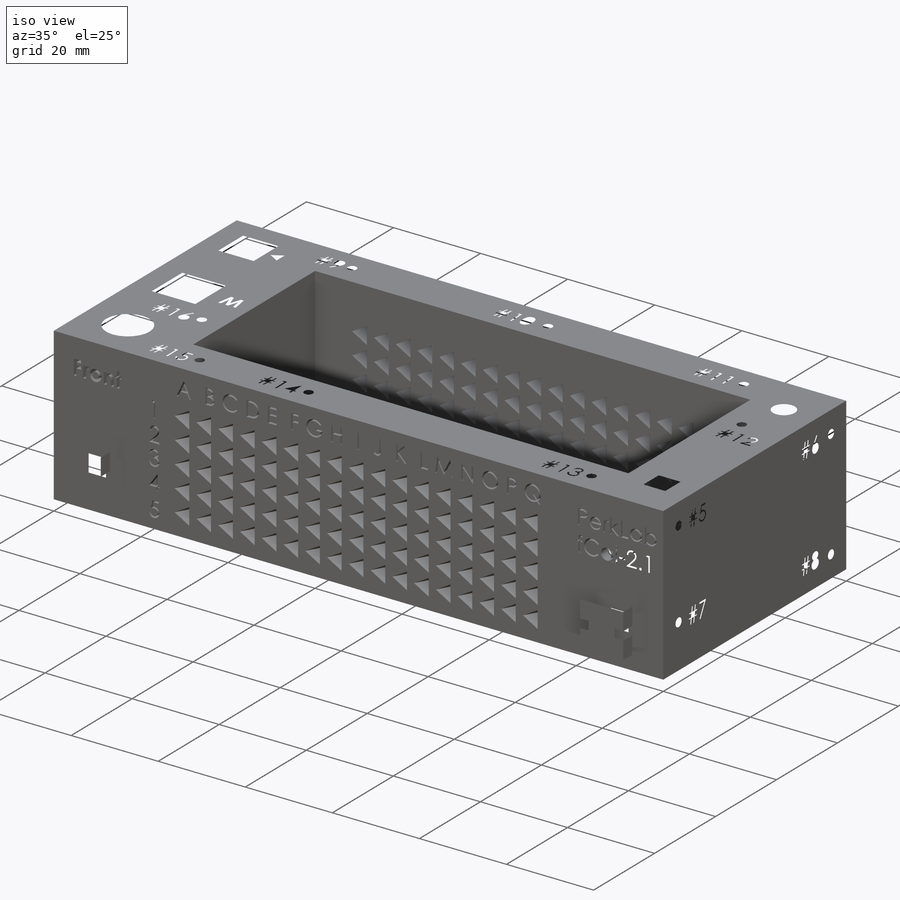
[diagram: iso view]
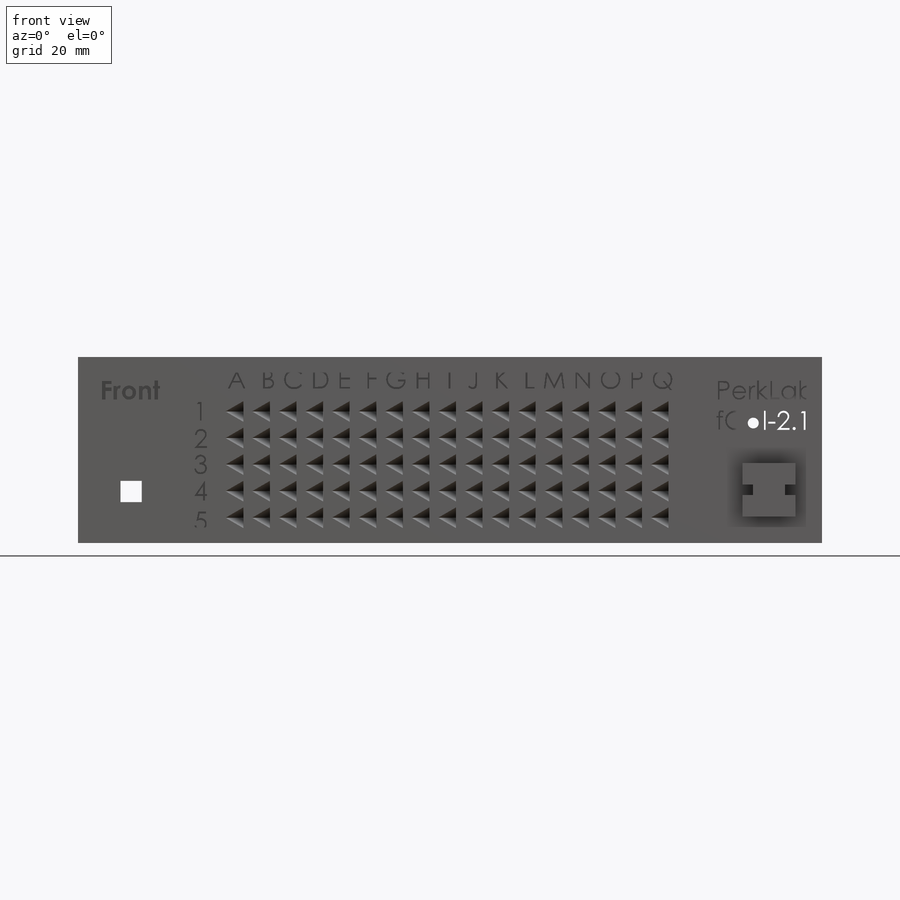
[diagram: front view]
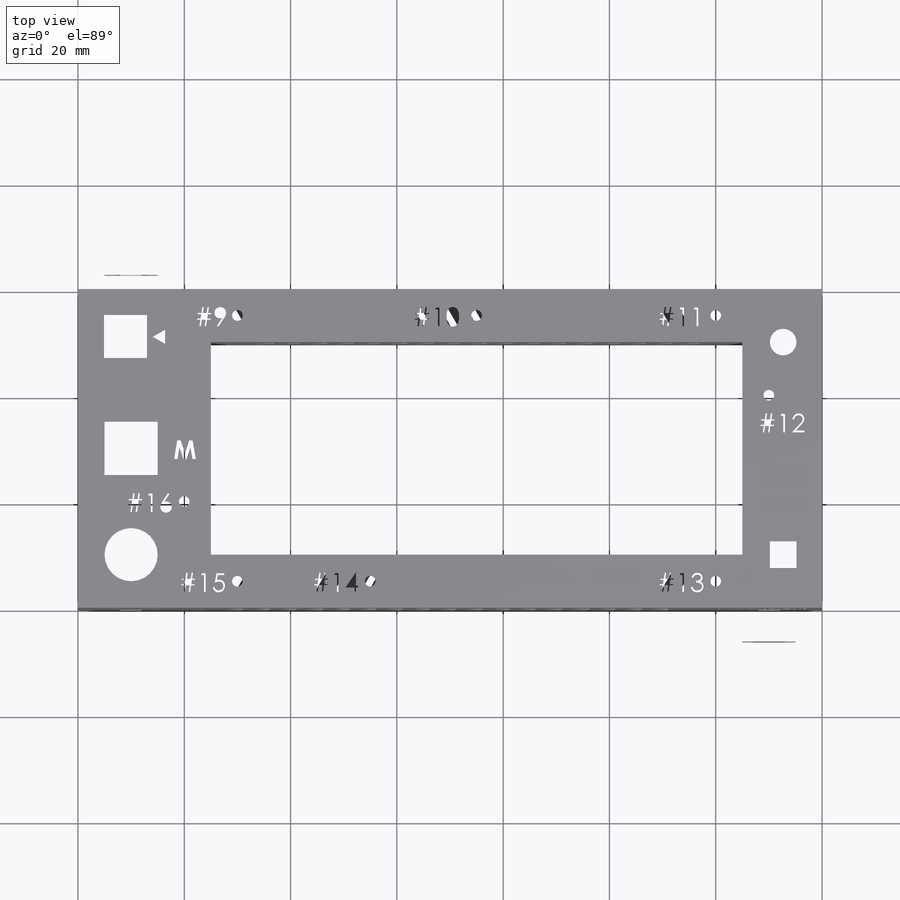
[diagram: top view]
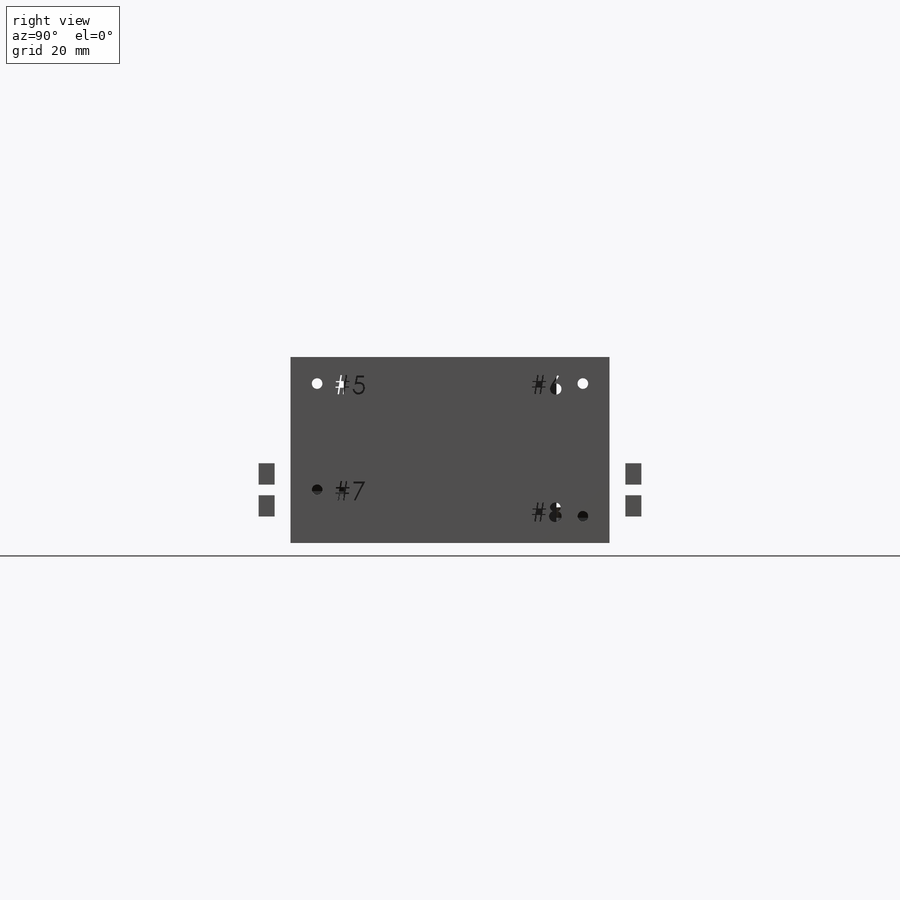
[diagram: right view]
SOLIDWORKS PART (.sldprt)
format: sldprt  version: not decoded by parser v0  size: 3,121,664 bytes
history: native  units: mm
features: sketch x23, cut_extrude x17, extrude x3, plane x3, mirror x3, material x1, pattern_linear x1 (+15 scaffold rows collapsed)
feature tree (66):
  scaffold x15  (default folders/planes/origin — collapsed)
  material  "Material <not specified>"
  sketch  "Sketch1"
  extrude  "Body"  Depth=35mm
  sketch  "Hole angle line"  dims[D1=60.0deg]
  sketch  "Sketch15"  dims[D1=~97.989943deg]
  cut_extrude  "Fiducial hole"  [1 undecoded]
  pattern_linear  "Fiducial holes front"  Count1=17 Count2=5 Spacing1=5mm Spacing2=5mm
  plane  "Center plane long"
  mirror  "Fiducial holes back"
  sketch  "Sketch2"
  cut_extrude  "Text-Front"  Depth=2mm
  sketch  "Sketch20"  dims[c1.Small sensor holder circle hole diameter=5.0mm c1.D3=~3.296039mm c1.D5=10.0mm c2.D5=10.0mm c2.D1=5.0mm c2.D2=5.0mm c2.D3=10.0mm c2.D4=10.0mm]
  cut_extrude  "Sensor holder holes"  [1 undecoded]
  sketch  "Sketch21"
  sketch  "Sketch22"  dims[D1=~2.02626mm]
  cut_extrude  "Divots Right"  Depth=2mm
  sketch  "Sketch23"  dims[D1=~1.416347mm]
  cut_extrude  "Divots Left"  Depth=2mm
  sketch  "Sketch24"
  cut_extrude  "Text Left"  Depth=2mm
  sketch  "Sketch25"
  cut_extrude  "Text Right"  Depth=2mm
  sketch  "Sketch28"
  cut_extrude  "Text Back"  Depth=2mm
  sketch  "Sketch29"  dims[c1.D1=4.0mm c1.D2=~3.993776mm c2.D2=90.0deg c3.D2=4.0mm]
  extrude  "Fiducial fixer base"  Depth=3mm
  sketch  "Sketch30"  dims[D1=10.0mm D2=10.0mm]
  extrude  "Fiducial fixer top"  Depth=3mm
  sketch  "Sketch31"
  cut_extrude  "Fiducial fixer top cut"  [1 undecoded]
  mirror  "Mirror2"
  plane  "Center plane short"
  mirror  "Mirror3"
  sketch  "Sketch33"
  cut_extrude  "Sensor holder hole"  Depth=20.1mm
  sketch  "Sketch34"  dims[D1=2.0mm]
  cut_extrude  "Sensor holder pushout hole"  [1 undecoded]
  sketch  "Sketch35"  dims[D1=3.425mm]
  cut_extrude  "Sensor holder nut hole 1"  Depth=3mm
  sketch  "Sketch36"  dims[D1=~0.985374mm]
  cut_extrude  "Sensor holder bolt hole 1"  [1 undecoded]
  sketch  "Sketch37"
  plane  "Plane3"
  sketch  "Sketch39"
  cut_extrude  "Sensor holder nut hole 2"  Depth=3mm
  sketch  "Sketch40"  dims[D1=~2.05859mm]
  cut_extrude  "Sensor holder bolt hole 2"  [1 undecoded]
  sketch  "Sketch26"  dims[D1=~1.649036mm]
  cut_extrude  "Divots Top"  Depth=2mm
  sketch  "Sketch27"
  cut_extrude  "Text Top"  Depth=2mm
decode coverage: 27 of 47 modeling features carry decoded parameters
note: ~ marks probable driven/reference dimensions
note: 6 parameter values undecoded
summary: no parameter record found for 6 features
note: suppression state not decoded; provenance and decode notes live in map.json
